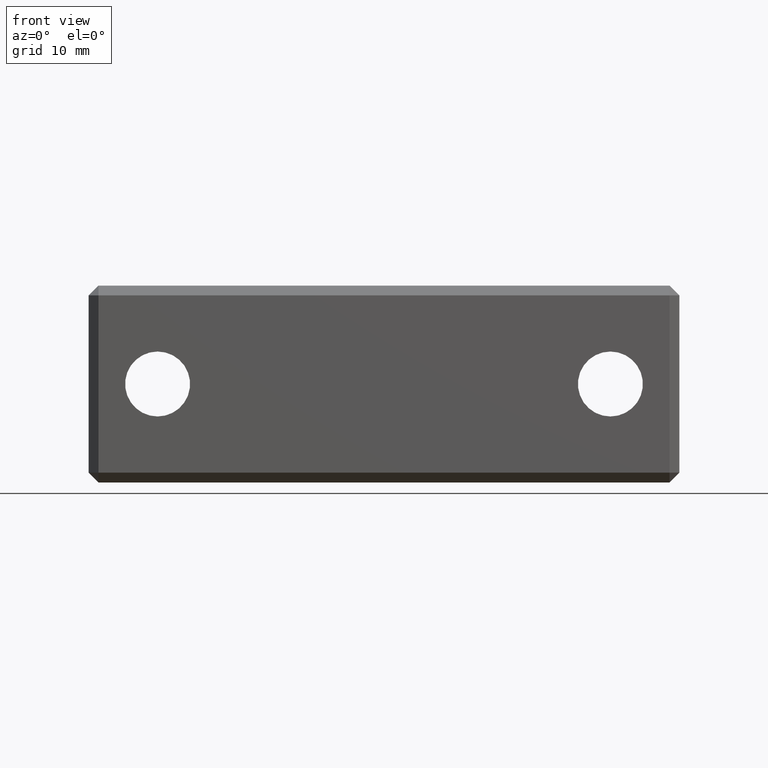
[diagram: clean part render]
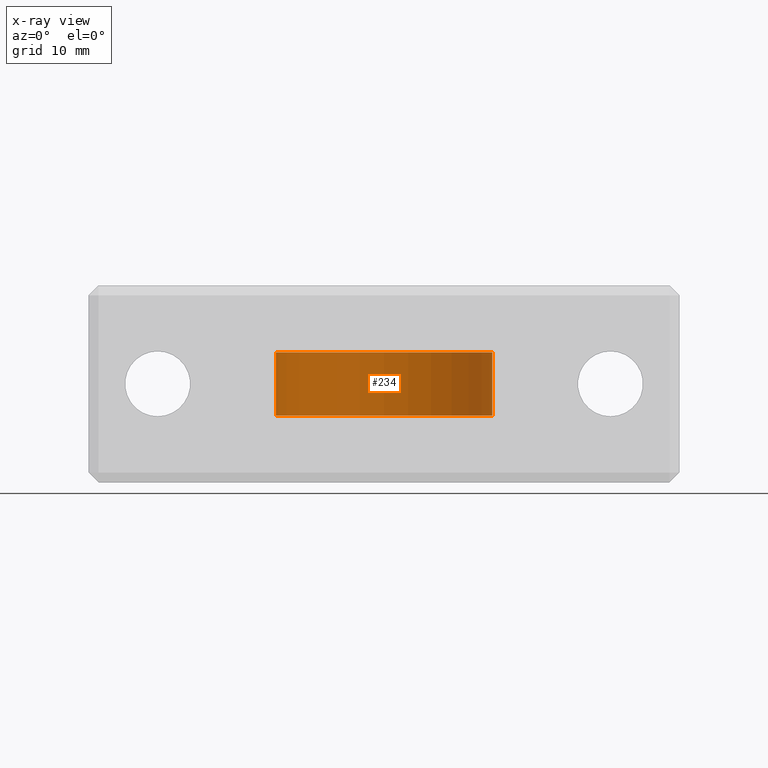
[diagram: x-ray — body ghosted, one internal face saturated and labeled with its STEP entity id]
A machine part, front view, then the same camera in x-ray: the body is ghosted and one INTERNAL B-rep face — a face not visible from any outside direction — is saturated and labeled: STEP entity #234.
In plain terms, the highlighted cylindrical surface (partial cylindrical patch) has radius 11 mm, axis along (-0, -0, 1).
Its self-contained STEP definition (entity closure, byte-faithful):
#23 = VERTEX_POINT ( 'NONE', #812 ) ;
#154 = VERTEX_POINT ( 'NONE', #1025 ) ;
#171 = EDGE_CURVE ( 'NONE', #174, #154, #1049, .T. ) ;
#174 = VERTEX_POINT ( 'NONE', #1044 ) ;
#183 = EDGE_CURVE ( 'NONE', #174, #23, #1095, .T. ) ;
#205 = ORIENTED_EDGE ( 'NONE', *, *, #183, .F. ) ;
#207 = ORIENTED_EDGE ( 'NONE', *, *, #610, .T. ) ;
#222 = EDGE_LOOP ( 'NONE', ( #229, #227, #207, #205 ) ) ;
#227 = ORIENTED_EDGE ( 'NONE', *, *, #230, .T. ) ;
#229 = ORIENTED_EDGE ( 'NONE', *, *, #171, .T. ) ;
#230 = EDGE_CURVE ( 'NONE', #154, #513, #1138, .T. ) ;
#234 = ADVANCED_FACE ( 'NONE', ( #1127 ), #1126, .T. ) ;
#513 = VERTEX_POINT ( 'NONE', #1686 ) ;
#610 = EDGE_CURVE ( 'NONE', #513, #23, #1966, .T. ) ;
#812 = CARTESIAN_POINT ( 'NONE',  ( 11.00000000000001400, 21.99999999999999300, 3.199999999999999700 ) ) ;
#1025 = CARTESIAN_POINT ( 'NONE',  ( -10.99999999999998400, 21.99999999999999300, -3.199999999999996200 ) ) ;
#1044 = CARTESIAN_POINT ( 'NONE',  ( 11.00000000000001400, 21.99999999999999300, -3.199999999999996200 ) ) ;
#1045 = DIRECTION ( 'NONE',  ( 1.000000000000000000, 0.0000000000000000000, 0.0000000000000000000 ) ) ;
#1046 = DIRECTION ( 'NONE',  ( -0.0000000000000000000, -0.0000000000000000000, 1.000000000000000000 ) ) ;
#1047 = CARTESIAN_POINT ( 'NONE',  ( 1.498183340698498200E-014, 21.99999999999999300, -3.199999999999996200 ) ) ;
#1048 = AXIS2_PLACEMENT_3D ( 'NONE', #1047, #1046, #1045 ) ;
#1049 = CIRCLE ( 'NONE', #1048, 11.00000000000000000 ) ;
#1092 = DIRECTION ( 'NONE',  ( -0.0000000000000000000, -0.0000000000000000000, 1.000000000000000000 ) ) ;
#1093 = VECTOR ( 'NONE', #1092, 1000.000000000000000 ) ;
#1094 = CARTESIAN_POINT ( 'NONE',  ( 11.00000000000001400, 21.99999999999999300, 19.58001605136436400 ) ) ;
#1095 = LINE ( 'NONE', #1094, #1093 ) ;
#1126 = CYLINDRICAL_SURFACE ( 'NONE', #1189, 11.00000000000000000 ) ;
#1127 = FACE_OUTER_BOUND ( 'NONE', #222, .T. ) ;
#1133 = CARTESIAN_POINT ( 'NONE',  ( 1.498183340698498200E-014, 21.99999999999999300, 19.58001605136436400 ) ) ;
#1135 = DIRECTION ( 'NONE',  ( -0.0000000000000000000, -0.0000000000000000000, 1.000000000000000000 ) ) ;
#1136 = VECTOR ( 'NONE', #1135, 1000.000000000000000 ) ;
#1137 = CARTESIAN_POINT ( 'NONE',  ( -10.99999999999998400, 21.99999999999999300, 19.58001605136436400 ) ) ;
#1138 = LINE ( 'NONE', #1137, #1136 ) ;
#1187 = DIRECTION ( 'NONE',  ( 1.000000000000000000, 0.0000000000000000000, 0.0000000000000000000 ) ) ;
#1188 = DIRECTION ( 'NONE',  ( -0.0000000000000000000, -0.0000000000000000000, 1.000000000000000000 ) ) ;
#1189 = AXIS2_PLACEMENT_3D ( 'NONE', #1133, #1188, #1187 ) ;
#1686 = CARTESIAN_POINT ( 'NONE',  ( -10.99999999999998400, 21.99999999999999300, 3.199999999999999700 ) ) ;
#1963 = DIRECTION ( 'NONE',  ( -1.000000000000000000, 0.0000000000000000000, 0.0000000000000000000 ) ) ;
#1964 = DIRECTION ( 'NONE',  ( 0.0000000000000000000, 0.0000000000000000000, -1.000000000000000000 ) ) ;
#1965 = AXIS2_PLACEMENT_3D ( 'NONE', #1971, #1964, #1963 ) ;
#1966 = CIRCLE ( 'NONE', #1965, 11.00000000000000000 ) ;
#1971 = CARTESIAN_POINT ( 'NONE',  ( 1.498183340698498200E-014, 21.99999999999999300, 3.199999999999999700 ) ) ;